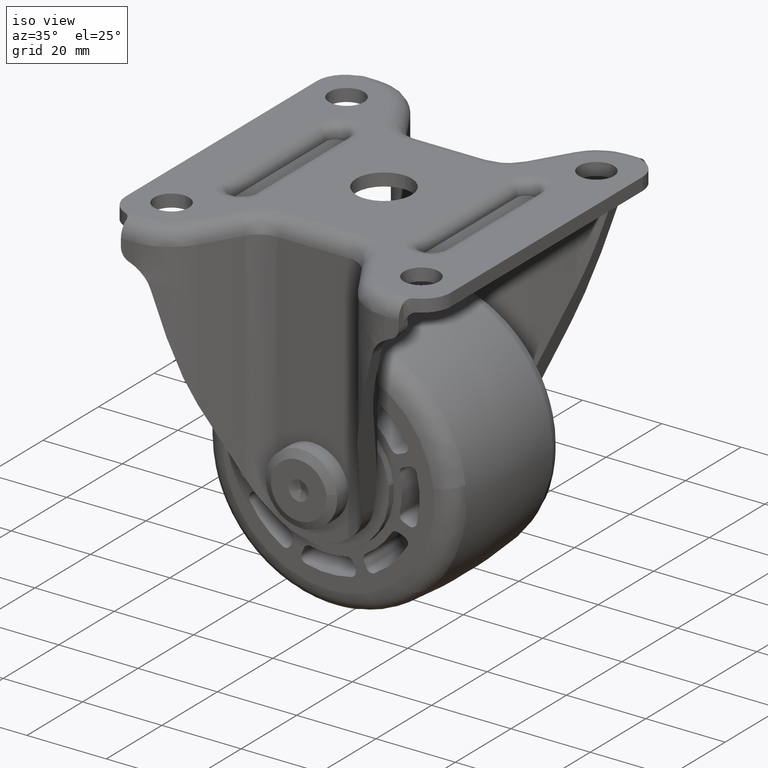
[diagram: clean part render]
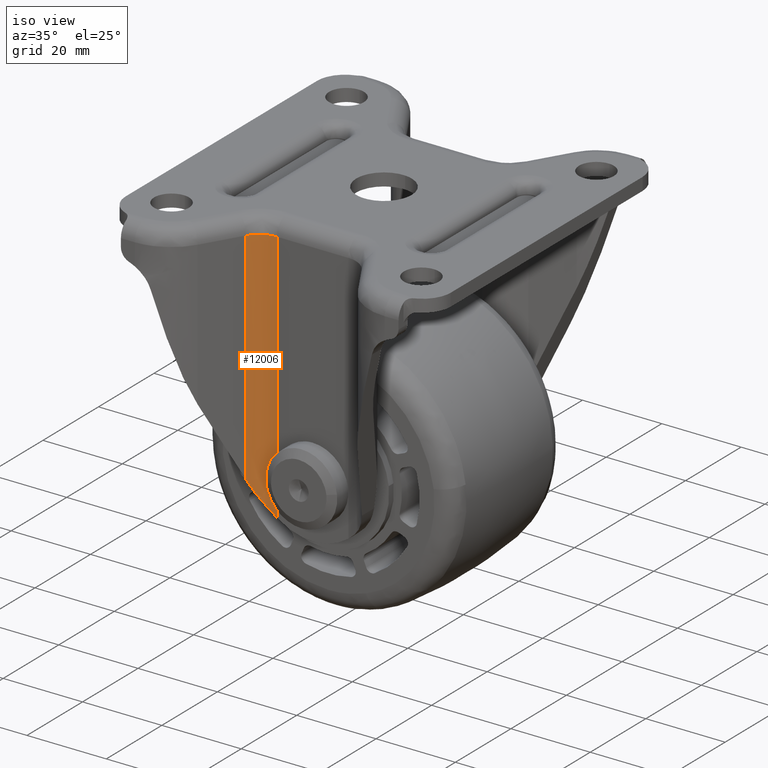
[diagram: same view with one face highlighted and labeled with its STEP entity id]
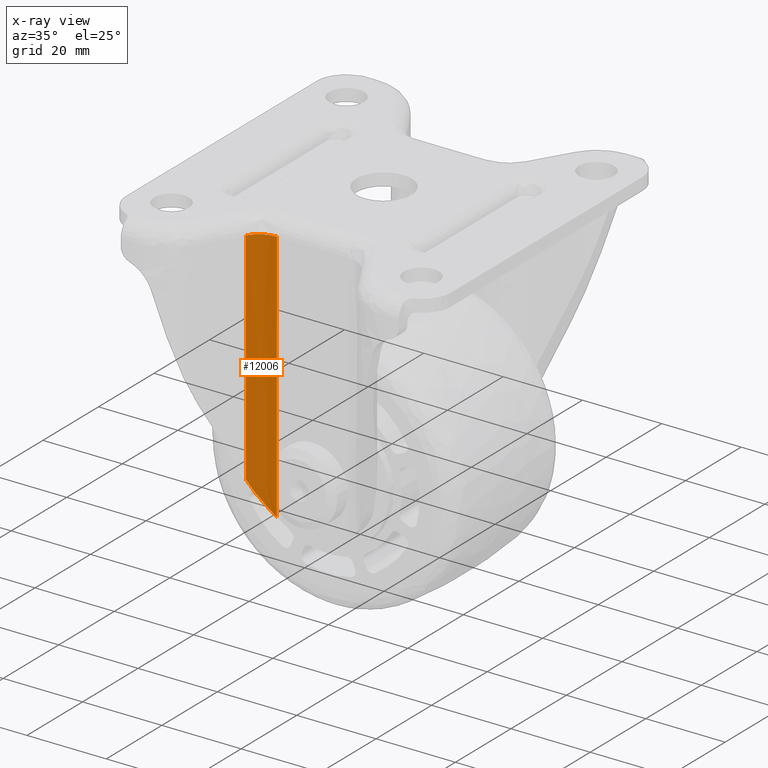
[diagram: x-ray of the same camera — body ghosted, the highlighted face saturated]
A machine part, iso view. The second image highlights one B-rep face of the part: STEP entity #12006.
The next image is the same camera in x-ray: the body ghosted, the highlighted face saturated — about 0% of this face is hidden behind the body in this view.
In plain terms, the highlighted face is a freeform B-spline surface patch.
Its self-contained STEP definition (entity closure, byte-faithful):
#7742=CARTESIAN_POINT('',(-14.587799261566619,-28.879389757390449,-59.556116812511299));
#7743=VERTEX_POINT('',#7742);
#7808=CARTESIAN_POINT('',(-14.400001811212601,-28.581989200270851,-60.199993790123301));
#7809=VERTEX_POINT('',#7808);
#7815=CARTESIAN_POINT('',(-14.587799261566619,-28.879389757390449,-59.556116812511299));
#7816=CARTESIAN_POINT('',(-14.497925080531212,-28.728148167674753,-59.864256864153887));
#7817=CARTESIAN_POINT('',(-14.400001811212601,-28.581989200270851,-60.199993790123301));
#7825=(BOUNDED_CURVE()B_SPLINE_CURVE(2,(#7815,#7816,#7817),.UNSPECIFIED.,.F.,.U.)CURVE()GEOMETRIC_REPRESENTATION_ITEM()QUASI_UNIFORM_CURVE()RATIONAL_B_SPLINE_CURVE((1.0,0.999633925671042,1.0))REPRESENTATION_ITEM(''));
#7826=EDGE_CURVE('',#7743,#7809,#7825,.T.);
#8186=CARTESIAN_POINT('',(-9.0,-25.699997000000000,-68.0));
#8187=VERTEX_POINT('',#8186);
#8203=CARTESIAN_POINT('',(-14.400001811212601,-28.581989200270851,-60.199993790123408));
#8204=CARTESIAN_POINT('',(-14.290107994980470,-28.417968877611791,-60.576773193108522));
#8205=CARTESIAN_POINT('',(-14.166728238253141,-28.250111434169959,-60.945040137656292));
#8206=CARTESIAN_POINT('',(-13.893040854906040,-27.915743522048999,-61.668600069105437));
#8207=CARTESIAN_POINT('',(-13.742728035858489,-27.749147846685400,-62.023852385955877));
#8208=CARTESIAN_POINT('',(-13.414281273493900,-27.423214793727610,-62.723572662725402));
#8209=CARTESIAN_POINT('',(-13.236151239871210,-27.263830466795390,-63.068021626656332));
#8210=CARTESIAN_POINT('',(-12.850279293001179,-26.957281412017188,-63.747448060586898));
#8211=CARTESIAN_POINT('',(-12.642549516014020,-26.810081034423028,-64.082415728231851));
#8212=CARTESIAN_POINT('',(-12.306550890879601,-26.602313418448411,-64.578384506269202));
#8213=CARTESIAN_POINT('',(-12.190474067867420,-26.535234193023861,-64.742623964149473));
#8214=CARTESIAN_POINT('',(-12.009855412124210,-26.438448943499459,-64.987416532259900));
#8215=CARTESIAN_POINT('',(-11.948477613251161,-26.406784745664019,-65.068864376370556));
#8216=CARTESIAN_POINT('',(-11.823955267703910,-26.345075556834502,-65.230628373989731));
#8217=CARTESIAN_POINT('',(-11.760839232060469,-26.315040657418319,-65.310913195459108));
#8218=CARTESIAN_POINT('',(-11.440945874010490,-26.169168371181431,-65.709369759150860));
#8219=CARTESIAN_POINT('',(-11.171267567155910,-26.066171103280510,-66.018657729582188));
#8220=CARTESIAN_POINT('',(-10.602805122675919,-25.893711348511189,-66.618438929054662));
#8221=CARTESIAN_POINT('',(-10.304036588464990,-25.824193081989520,-66.908931903216001));
#8222=CARTESIAN_POINT('',(-9.910657292024727,-25.763612923086711,-67.260106343653106));
#8223=CARTESIAN_POINT('',(-9.830981784731760,-25.752821605623481,-67.329742985969389));
#8224=CARTESIAN_POINT('',(-9.669571245257686,-25.734065076453788,-67.467810205646771));
#8225=CARTESIAN_POINT('',(-9.587751205216280,-25.726093527683020,-67.536310054398683));
#8226=CARTESIAN_POINT('',(-9.339708665185064,-25.706761395523429,-67.739486080184832));
#8227=CARTESIAN_POINT('',(-9.171363431785556,-25.699997000000010,-67.871477426160837));
#8228=CARTESIAN_POINT('',(-9.0,-25.699997000000000,-68.0));
#8229=B_SPLINE_CURVE_WITH_KNOTS('',3,(#8203,#8204,#8205,#8206,#8207,#8208,#8209,#8210,#8211,#8212,#8213,#8214,#8215,#8216,#8217,#8218,#8219,#8220,#8221,#8222,#8223,#8224,#8225,#8226,#8227,#8228),.UNSPECIFIED.,.F.,.U.,(4,2,2,2,2,2,2,2,2,2,2,2,4),(0.0,0.125000000000000,0.249999999999999,0.374999999999999,0.499999999999998,0.562499999999997,0.593749999999997,0.624999999999998,0.749999999999999,0.874999999999999,0.906249999999999,0.937499999999999,1.0),.UNSPECIFIED.);
#8230=EDGE_CURVE('',#7809,#8187,#8229,.T.);
#10514=CARTESIAN_POINT('',(-14.587802801252700,-28.879385632448400,-4.0));
#10515=VERTEX_POINT('',#10514);
#10562=CARTESIAN_POINT('',(-9.0,-25.699997000000000,-4.0));
#10563=VERTEX_POINT('',#10562);
#10593=CARTESIAN_POINT('',(-9.0,-25.699997000000000,-4.0));
#10594=CARTESIAN_POINT('',(-12.698417221574420,-25.699997000000003,-4.000000000000000));
#10595=CARTESIAN_POINT('',(-14.587802801252669,-28.879385632448422,-4.0));
#10603=(BOUNDED_CURVE()B_SPLINE_CURVE(2,(#10593,#10594,#10595),.UNSPECIFIED.,.F.,.U.)CURVE()GEOMETRIC_REPRESENTATION_ITEM()QUASI_UNIFORM_CURVE()RATIONAL_B_SPLINE_CURVE((1.0,0.869155707372283,1.0))REPRESENTATION_ITEM(''));
#10604=EDGE_CURVE('',#10563,#10515,#10603,.T.);
#11972=CARTESIAN_POINT('',(-14.587799261566619,-28.879389757390449,-59.556116812511299));
#11973=CARTESIAN_POINT('',(-14.587802801252700,-28.879385632448400,-4.0));
#11974=QUASI_UNIFORM_CURVE('',1,(#11972,#11973),.UNSPECIFIED.,.F.,.U.);
#11975=EDGE_CURVE('',#7743,#10515,#11974,.T.);
#11981=CARTESIAN_POINT('',(-14.712311232302779,-29.098465058312559,-69.599999999999994));
#11982=CARTESIAN_POINT('',(-14.712311232302779,-29.098465058312559,-2.359999999999999));
#11983=CARTESIAN_POINT('',(-12.761923470901142,-25.506297662887047,-69.599999999999994));
#11984=CARTESIAN_POINT('',(-12.761923470901142,-25.506297662887047,-2.359999999999999));
#11985=CARTESIAN_POINT('',(-8.679395812367925,-25.707908510548194,-69.600000000000009));
#11986=CARTESIAN_POINT('',(-8.679395812367925,-25.707908510548194,-2.359999999999999));
#11994=(BOUNDED_SURFACE()B_SPLINE_SURFACE(1,2,((#11981,#11983,#11985),(#11982,#11984,#11986)),.UNSPECIFIED.,.F.,.F.,.U.)B_SPLINE_SURFACE_WITH_KNOTS((2,2),(3,3),(0.0,67.240000000000009),(0.0,7.495530858657344),.UNSPECIFIED.)GEOMETRIC_REPRESENTATION_ITEM()RATIONAL_B_SPLINE_SURFACE(((1.0,0.842976390391066,0.991618196702989),(1.0,0.842976390391066,0.991618196702989)))REPRESENTATION_ITEM('')SURFACE());
#11995=ORIENTED_EDGE('',*,*,#11975,.F.);
#11996=ORIENTED_EDGE('',*,*,#7826,.T.);
#11997=ORIENTED_EDGE('',*,*,#8230,.T.);
#11998=CARTESIAN_POINT('',(-9.0,-25.699997000000000,-68.0));
#11999=CARTESIAN_POINT('',(-9.0,-25.699997000000000,-4.0));
#12000=QUASI_UNIFORM_CURVE('',1,(#11998,#11999),.UNSPECIFIED.,.F.,.U.);
#12001=EDGE_CURVE('',#8187,#10563,#12000,.T.);
#12002=ORIENTED_EDGE('',*,*,#12001,.T.);
#12003=ORIENTED_EDGE('',*,*,#10604,.T.);
#12004=EDGE_LOOP('',(#11995,#11996,#11997,#12002,#12003));
#12005=FACE_OUTER_BOUND('',#12004,.T.);
#12006=ADVANCED_FACE('',(#12005),#11994,.F.);